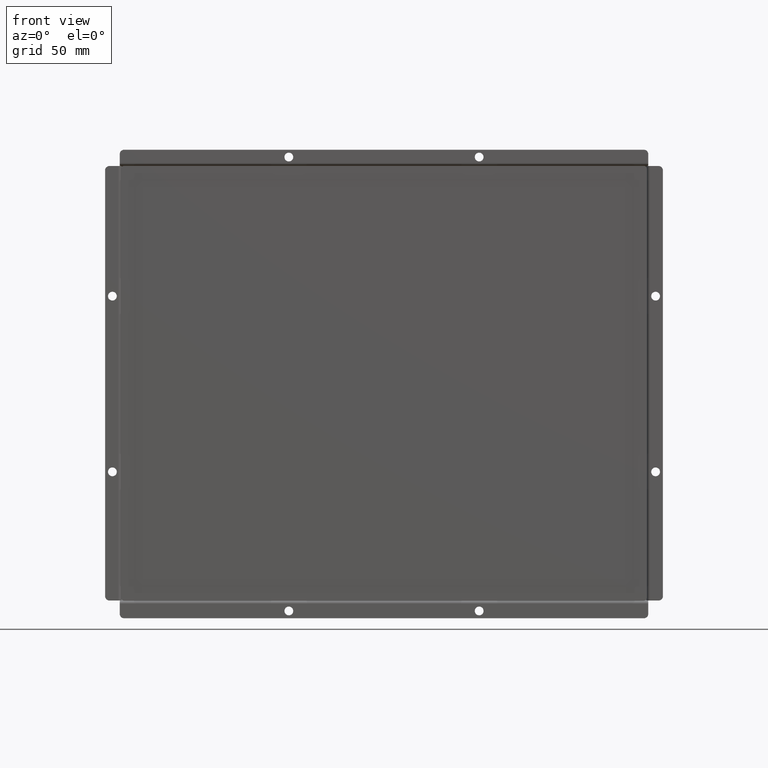
[diagram: clean part render]
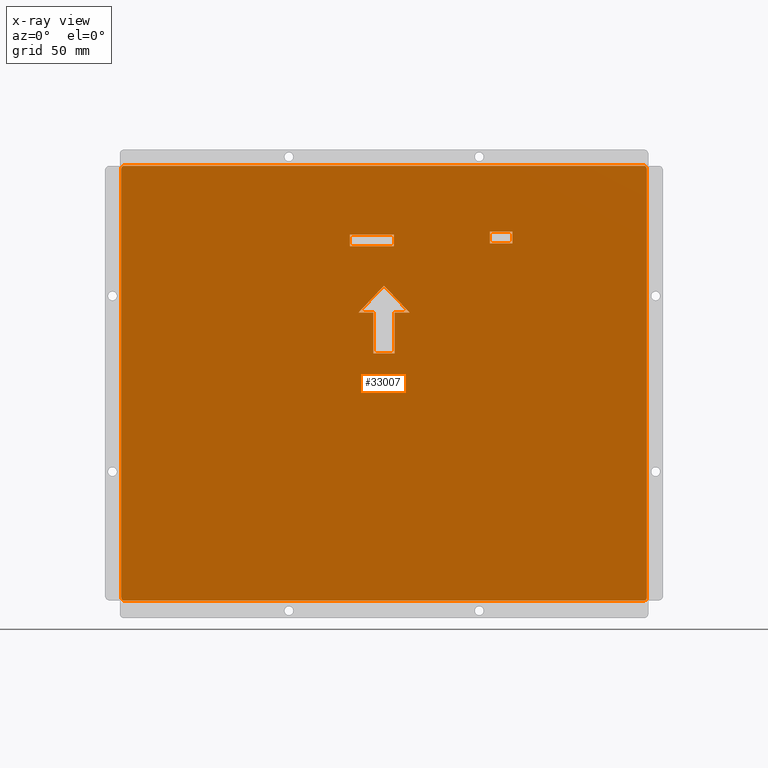
[diagram: x-ray — body ghosted, one internal face saturated and labeled with its STEP entity id]
A machine part, front view, then the same camera in x-ray: the body is ghosted and one INTERNAL B-rep face — a face not visible from any outside direction — is saturated and labeled: STEP entity #33007.
In plain terms, the highlighted planar face has unit normal (0, -1, 0).
Its self-contained STEP definition (entity closure, byte-faithful):
#2060=FACE_BOUND('',#5571,.T.);
#2061=FACE_BOUND('',#5572,.T.);
#2062=FACE_BOUND('',#5573,.T.);
#2404=PLANE('',#35451);
#3651=FACE_OUTER_BOUND('',#5570,.T.);
#5570=EDGE_LOOP('',(#23960,#23961,#23962,#23963,#23964,#23965,#23966,#23967));
#5571=EDGE_LOOP('',(#23968,#23969,#23970,#23971));
#5572=EDGE_LOOP('',(#23972,#23973,#23974,#23975));
#5573=EDGE_LOOP('',(#23976,#23977,#23978,#23979,#23980,#23981,#23982));
#7802=LINE('',#48733,#11012);
#7803=LINE('',#48737,#11013);
#7804=LINE('',#48741,#11014);
#7805=LINE('',#48744,#11015);
#7806=LINE('',#48747,#11016);
#7807=LINE('',#48749,#11017);
#7808=LINE('',#48751,#11018);
#7809=LINE('',#48752,#11019);
#7810=LINE('',#48755,#11020);
#7811=LINE('',#48757,#11021);
#7812=LINE('',#48759,#11022);
#7813=LINE('',#48760,#11023);
#7814=LINE('',#48763,#11024);
#7815=LINE('',#48765,#11025);
#7816=LINE('',#48767,#11026);
#7817=LINE('',#48769,#11027);
#7818=LINE('',#48771,#11028);
#7819=LINE('',#48773,#11029);
#7820=LINE('',#48774,#11030);
#11012=VECTOR('',#39119,10.);
#11013=VECTOR('',#39122,10.);
#11014=VECTOR('',#39125,10.);
#11015=VECTOR('',#39128,10.);
#11016=VECTOR('',#39129,10.);
#11017=VECTOR('',#39130,10.);
#11018=VECTOR('',#39131,10.);
#11019=VECTOR('',#39132,10.);
#11020=VECTOR('',#39133,10.);
#11021=VECTOR('',#39134,10.);
#11022=VECTOR('',#39135,10.);
#11023=VECTOR('',#39136,10.);
#11024=VECTOR('',#39137,10.);
#11025=VECTOR('',#39138,10.);
#11026=VECTOR('',#39139,10.);
#11027=VECTOR('',#39140,10.);
#11028=VECTOR('',#39141,10.);
#11029=VECTOR('',#39142,10.);
#11030=VECTOR('',#39143,10.);
#14050=CIRCLE('',#35452,2.);
#14051=CIRCLE('',#35453,2.);
#14052=CIRCLE('',#35454,2.);
#14053=CIRCLE('',#35455,2.);
#15426=VERTEX_POINT('',#48729);
#15427=VERTEX_POINT('',#48730);
#15428=VERTEX_POINT('',#48732);
#15429=VERTEX_POINT('',#48734);
#15430=VERTEX_POINT('',#48736);
#15431=VERTEX_POINT('',#48738);
#15432=VERTEX_POINT('',#48740);
#15433=VERTEX_POINT('',#48742);
#15434=VERTEX_POINT('',#48745);
#15435=VERTEX_POINT('',#48746);
#15436=VERTEX_POINT('',#48748);
#15437=VERTEX_POINT('',#48750);
#15438=VERTEX_POINT('',#48753);
#15439=VERTEX_POINT('',#48754);
#15440=VERTEX_POINT('',#48756);
#15441=VERTEX_POINT('',#48758);
#15442=VERTEX_POINT('',#48761);
#15443=VERTEX_POINT('',#48762);
#15444=VERTEX_POINT('',#48764);
#15445=VERTEX_POINT('',#48766);
#15446=VERTEX_POINT('',#48768);
#15447=VERTEX_POINT('',#48770);
#15448=VERTEX_POINT('',#48772);
#18747=EDGE_CURVE('',#15426,#15427,#14050,.T.);
#18748=EDGE_CURVE('',#15426,#15428,#7802,.T.);
#18749=EDGE_CURVE('',#15429,#15428,#14051,.T.);
#18750=EDGE_CURVE('',#15429,#15430,#7803,.T.);
#18751=EDGE_CURVE('',#15431,#15430,#14052,.T.);
#18752=EDGE_CURVE('',#15431,#15432,#7804,.T.);
#18753=EDGE_CURVE('',#15433,#15432,#14053,.T.);
#18754=EDGE_CURVE('',#15433,#15427,#7805,.T.);
#18755=EDGE_CURVE('',#15434,#15435,#7806,.T.);
#18756=EDGE_CURVE('',#15435,#15436,#7807,.T.);
#18757=EDGE_CURVE('',#15436,#15437,#7808,.T.);
#18758=EDGE_CURVE('',#15437,#15434,#7809,.T.);
#18759=EDGE_CURVE('',#15438,#15439,#7810,.T.);
#18760=EDGE_CURVE('',#15439,#15440,#7811,.T.);
#18761=EDGE_CURVE('',#15440,#15441,#7812,.T.);
#18762=EDGE_CURVE('',#15441,#15438,#7813,.T.);
#18763=EDGE_CURVE('',#15442,#15443,#7814,.T.);
#18764=EDGE_CURVE('',#15444,#15442,#7815,.T.);
#18765=EDGE_CURVE('',#15445,#15444,#7816,.T.);
#18766=EDGE_CURVE('',#15446,#15445,#7817,.T.);
#18767=EDGE_CURVE('',#15447,#15446,#7818,.T.);
#18768=EDGE_CURVE('',#15448,#15447,#7819,.T.);
#18769=EDGE_CURVE('',#15443,#15448,#7820,.T.);
#23960=ORIENTED_EDGE('',*,*,#18747,.F.);
#23961=ORIENTED_EDGE('',*,*,#18748,.T.);
#23962=ORIENTED_EDGE('',*,*,#18749,.F.);
#23963=ORIENTED_EDGE('',*,*,#18750,.T.);
#23964=ORIENTED_EDGE('',*,*,#18751,.F.);
#23965=ORIENTED_EDGE('',*,*,#18752,.T.);
#23966=ORIENTED_EDGE('',*,*,#18753,.F.);
#23967=ORIENTED_EDGE('',*,*,#18754,.T.);
#23968=ORIENTED_EDGE('',*,*,#18755,.T.);
#23969=ORIENTED_EDGE('',*,*,#18756,.T.);
#23970=ORIENTED_EDGE('',*,*,#18757,.T.);
#23971=ORIENTED_EDGE('',*,*,#18758,.T.);
#23972=ORIENTED_EDGE('',*,*,#18759,.T.);
#23973=ORIENTED_EDGE('',*,*,#18760,.T.);
#23974=ORIENTED_EDGE('',*,*,#18761,.T.);
#23975=ORIENTED_EDGE('',*,*,#18762,.T.);
#23976=ORIENTED_EDGE('',*,*,#18763,.F.);
#23977=ORIENTED_EDGE('',*,*,#18764,.F.);
#23978=ORIENTED_EDGE('',*,*,#18765,.F.);
#23979=ORIENTED_EDGE('',*,*,#18766,.F.);
#23980=ORIENTED_EDGE('',*,*,#18767,.F.);
#23981=ORIENTED_EDGE('',*,*,#18768,.F.);
#23982=ORIENTED_EDGE('',*,*,#18769,.F.);
#33007=ADVANCED_FACE('',(#3651,#2060,#2061,#2062),#2404,.F.);
#35451=AXIS2_PLACEMENT_3D('',#48728,#39115,#39116);
#35452=AXIS2_PLACEMENT_3D('',#48731,#39117,#39118);
#35453=AXIS2_PLACEMENT_3D('',#48735,#39120,#39121);
#35454=AXIS2_PLACEMENT_3D('',#48739,#39123,#39124);
#35455=AXIS2_PLACEMENT_3D('',#48743,#39126,#39127);
#39115=DIRECTION('center_axis',(0.,0.,1.));
#39116=DIRECTION('ref_axis',(1.,0.,0.));
#39117=DIRECTION('center_axis',(0.,0.,1.));
#39118=DIRECTION('ref_axis',(-0.707106781186541,0.707106781186554,0.));
#39119=DIRECTION('',(1.,2.47403459526497E-16,0.));
#39120=DIRECTION('center_axis',(0.,0.,1.));
#39121=DIRECTION('ref_axis',(0.707106781186554,0.707106781186541,0.));
#39122=DIRECTION('',(0.,-1.,0.));
#39123=DIRECTION('center_axis',(0.,0.,1.));
#39124=DIRECTION('ref_axis',(0.707106781186548,-0.707106781186548,0.));
#39125=DIRECTION('',(-1.,-1.48442075715898E-16,0.));
#39126=DIRECTION('center_axis',(0.,0.,1.));
#39127=DIRECTION('ref_axis',(-0.707106781186541,-0.707106781186554,0.));
#39128=DIRECTION('',(2.39239978370404E-16,1.,0.));
#39129=DIRECTION('',(-2.22044604925031E-15,-1.,0.));
#39130=DIRECTION('',(1.,0.,0.));
#39131=DIRECTION('',(-2.22044604925031E-15,1.,0.));
#39132=DIRECTION('',(-1.,0.,0.));
#39133=DIRECTION('',(1.,0.,0.));
#39134=DIRECTION('',(0.,1.,0.));
#39135=DIRECTION('',(-1.,0.,0.));
#39136=DIRECTION('',(-1.11022302462516E-15,-1.,0.));
#39137=DIRECTION('',(0.687445325872096,0.726236135108002,0.));
#39138=DIRECTION('',(-1.,0.,0.));
#39139=DIRECTION('',(0.,1.,0.));
#39140=DIRECTION('',(-1.,0.,0.));
#39141=DIRECTION('',(0.,-1.,0.));
#39142=DIRECTION('',(-1.,0.,0.));
#39143=DIRECTION('',(0.687445325872096,-0.726236135108002,0.));
#48728=CARTESIAN_POINT('Origin',(1.9496599456832E-14,-4.95538569527814E-15,
0.));
#48729=CARTESIAN_POINT('',(-177.5,148.5,0.));
#48730=CARTESIAN_POINT('',(-179.5,146.5,0.));
#48731=CARTESIAN_POINT('Origin',(-177.5,146.5,0.));
#48732=CARTESIAN_POINT('',(177.5,148.5,0.));
#48733=CARTESIAN_POINT('',(-179.5,148.5,0.));
#48734=CARTESIAN_POINT('',(179.5,146.5,0.));
#48735=CARTESIAN_POINT('Origin',(177.5,146.5,0.));
#48736=CARTESIAN_POINT('',(179.5,-146.5,0.));
#48737=CARTESIAN_POINT('',(179.5,148.5,0.));
#48738=CARTESIAN_POINT('',(177.5,-148.5,0.));
#48739=CARTESIAN_POINT('Origin',(177.5,-146.5,0.));
#48740=CARTESIAN_POINT('',(-177.5,-148.5,0.));
#48741=CARTESIAN_POINT('',(179.5,-148.5,0.));
#48742=CARTESIAN_POINT('',(-179.5,-146.5,0.));
#48743=CARTESIAN_POINT('Origin',(-177.5,-146.5,0.));
#48744=CARTESIAN_POINT('',(-179.5,-148.5,0.));
#48745=CARTESIAN_POINT('',(-23.3,101.6,0.));
#48746=CARTESIAN_POINT('',(-23.3,93.6,0.));
#48747=CARTESIAN_POINT('',(-23.3000000000001,50.8,0.));
#48748=CARTESIAN_POINT('',(6.70000000000002,93.6,0.));
#48749=CARTESIAN_POINT('',(-11.65,93.6,0.));
#48750=CARTESIAN_POINT('',(6.7,101.6,0.));
#48751=CARTESIAN_POINT('',(6.70000000000012,46.8,0.));
#48752=CARTESIAN_POINT('',(3.35000000000001,101.6,0.));
#48753=CARTESIAN_POINT('',(72.3396774801429,95.5,0.));
#48754=CARTESIAN_POINT('',(87.6603225198572,95.5,0.));
#48755=CARTESIAN_POINT('',(36.1698387400714,95.5,0.));
#48756=CARTESIAN_POINT('',(87.6603225198572,103.5,0.));
#48757=CARTESIAN_POINT('',(87.6603225198572,47.75,0.));
#48758=CARTESIAN_POINT('',(72.3396774801429,103.5,0.));
#48759=CARTESIAN_POINT('',(43.8301612599286,103.5,0.));
#48760=CARTESIAN_POINT('',(72.3396774801428,51.75,0.));
#48761=CARTESIAN_POINT('',(-17.4080803598368,48.2165600356824,0.));
#48762=CARTESIAN_POINT('',(-1.65436122510606E-23,66.6069345489417,0.));
#48763=CARTESIAN_POINT('',(-25.3307175059317,39.8468684190526,0.));
#48764=CARTESIAN_POINT('',(-7.26774225384591,48.2165600356824,0.));
#48765=CARTESIAN_POINT('',(-3.63387112692295,48.2165600356824,0.));
#48766=CARTESIAN_POINT('',(-7.26774225384591,20.3705679255855,0.));
#48767=CARTESIAN_POINT('',(-7.26774225384591,10.1852839627928,0.));
#48768=CARTESIAN_POINT('',(7.26774225384591,20.3705679255855,0.));
#48769=CARTESIAN_POINT('',(3.63387112692297,20.3705679255855,0.));
#48770=CARTESIAN_POINT('',(7.26774225384591,48.2165600356824,0.));
#48771=CARTESIAN_POINT('',(7.26774225384591,24.1082800178412,0.));
#48772=CARTESIAN_POINT('',(17.4080803598368,48.2165600356824,0.));
#48773=CARTESIAN_POINT('',(8.7040401799184,48.2165600356824,0.));
#48774=CARTESIAN_POINT('',(16.6266773260133,49.0420556756822,0.));